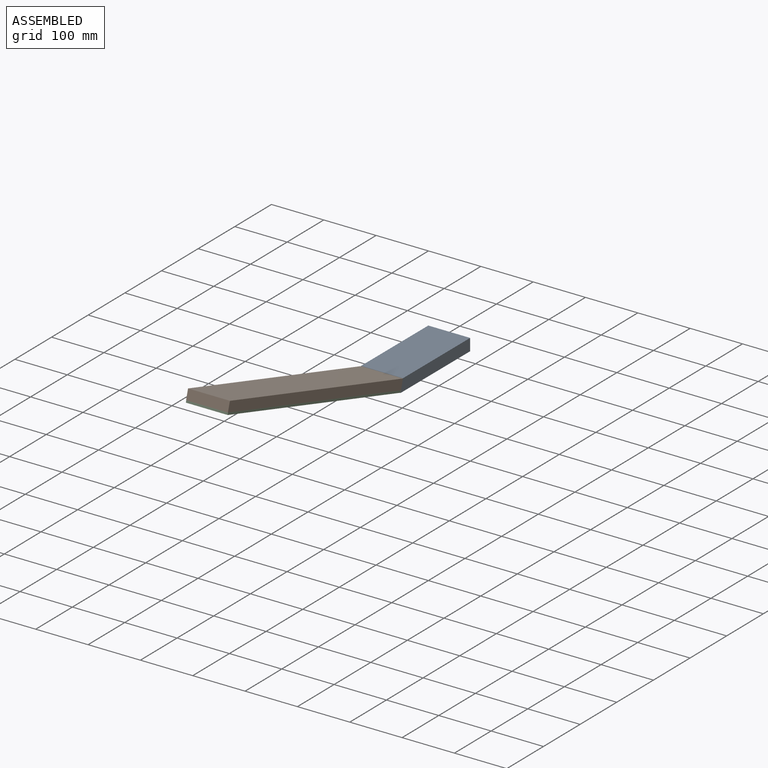
[diagram: assembled view]
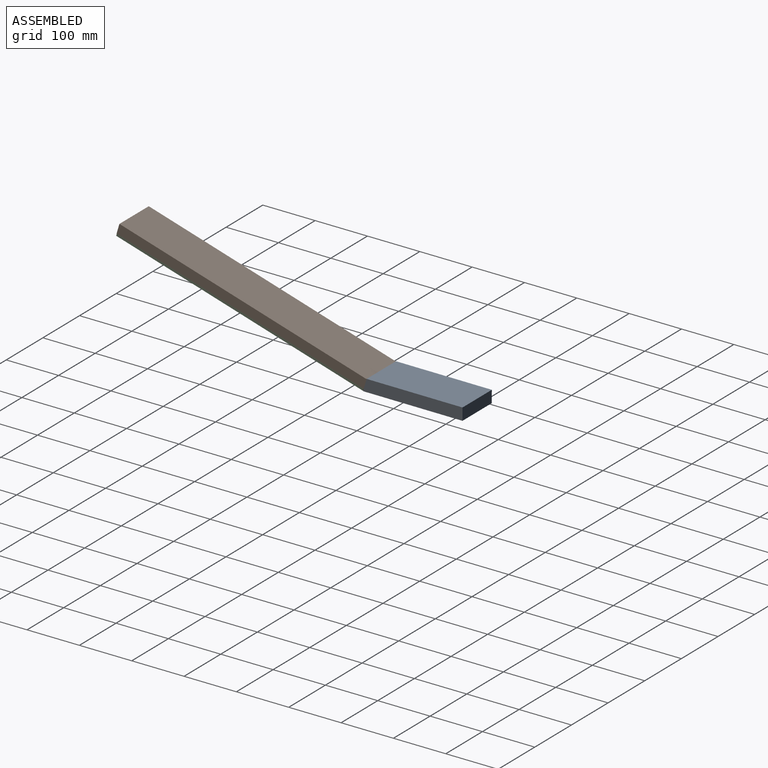
[diagram: assembled view, second angle]
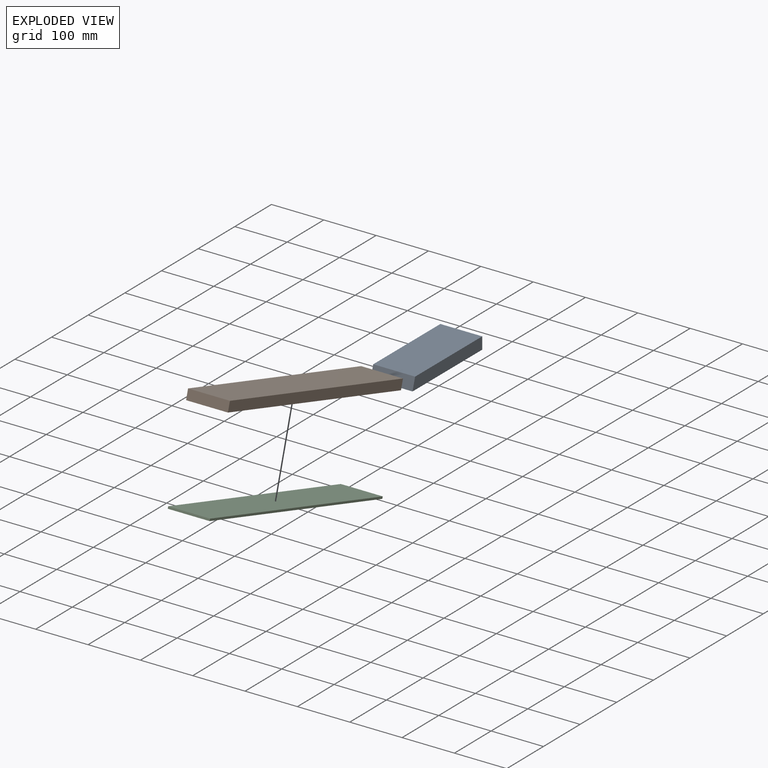
[diagram: exploded view]
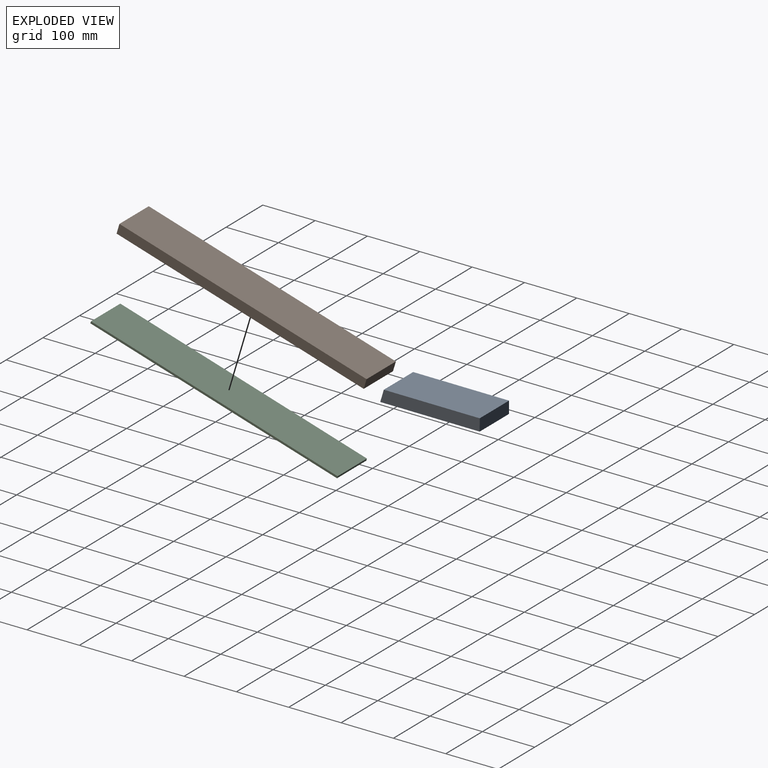
[diagram: exploded view, second angle]
ASSEMBLY  parts=3 mates=2
PART A: 6 faces, bbox 80x190x23 mm
  f0: plane 190x23mm, normal (1,0,0), area 4291.2mm2, adj f2,f3,f4,f5
  f1: plane 190x23mm, normal (-1,0,0), area 4291.2mm2, adj f2,f3,f4,f5
  f2: plane 80x23mm, normal (0,-1,0), area 1840mm2, adj f0,f1,f3,f4
  f3: plane 190x80mm, normal (0,0,1), area 15200mm2, adj f0,f1,f2,f5
  f4: plane 183.14x80mm, normal (0,0,-1), area 14651.5mm2, adj f0,f1,f2,f5
  f5: plane 80x23mm, normal (0,0.96,-0.29), area 1920mm2, adj f0,f1,f3,f4
PART B: 6 faces, bbox 80x493x19 mm
  f0: plane 80x19mm, normal (0,-1,0), area 1520mm2, adj f1,f3,f4,f5
  f1: plane 493x19mm, normal (1,0,0), area 9367mm2, adj f0,f2,f4,f5
  f2: plane 80x19mm, normal (0,1,0), area 1520mm2, adj f1,f3,f4,f5
  f3: plane 493x19mm, normal (-1,0,0), area 9367mm2, adj f0,f2,f4,f5
  f4: plane 493x80mm, normal (0,0,1), area 39440mm2, adj f0,f1,f2,f3
  f5: plane 493x80mm, normal (0,0,-1), area 39440mm2, adj f0,f1,f2,f3
PART C: 6 faces, bbox 80x492x4 mm
  f0: plane 80x4mm, normal (0,-1,0), area 320mm2, adj f1,f3,f4,f5
  f1: plane 492x4mm, normal (1,0,0), area 1968mm2, adj f0,f2,f4,f5
  f2: plane 80x4mm, normal (0,1,0), area 320mm2, adj f1,f3,f4,f5
  f3: plane 492x4mm, normal (-1,0,0), area 1968mm2, adj f0,f2,f4,f5
  f4: plane 492x80mm, normal (0,0,1), area 39360mm2, adj f0,f1,f2,f3
  f5: plane 492x80mm, normal (0,0,-1), area 39360mm2, adj f0,f1,f2,f3
PLACE A rot(axis=(1,0,0),179.9deg) t=(-59.76,333.03,107.14)mm
PLACE B rot(axis=(-1,0,0),16.7deg) t=(-59.76,3.2,159.56)mm
PLACE C rot(axis=(-1,0,0),16.7deg) t=(-59.76,2.05,155.73)mm
MATE fastened C.f4 <-> B.f5  axis (0,0.29,0.96) through (-59.76,3.2,159.56)mm
MATE fastened A.f5 <-> B.f2  axis (0,-0.96,0.29) through (-59.76,241.44,95.83)mm
